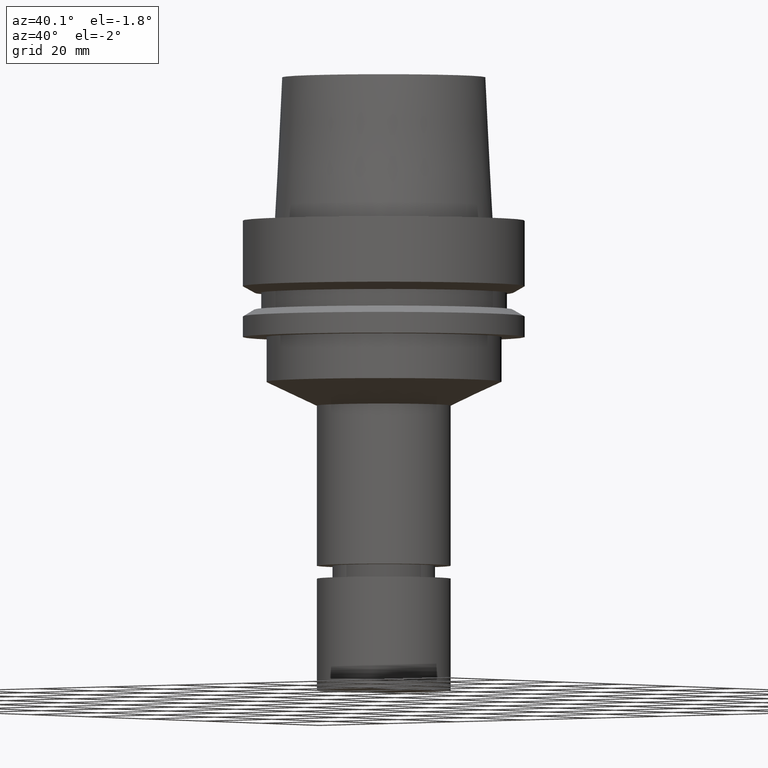
[diagram: clean part render]
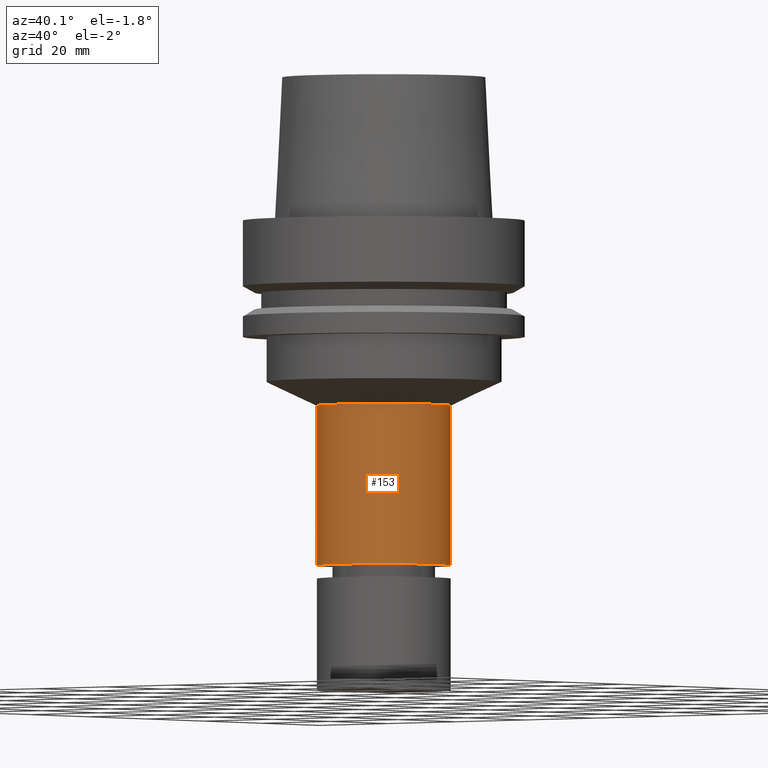
[diagram: same view with one face highlighted and labeled with its STEP entity id]
A machine part, auxiliary view. The second image highlights one B-rep face of the part: STEP entity #153.
In plain terms, the highlighted cylindrical surface (bore or boss wall) has radius 15 mm, axis along (-0, -0, 1).
Its self-contained STEP definition (entity closure, byte-faithful):
#79=EDGE_CURVE('Unnamed[1]',#215,#215,#216,.T.);
#146=EDGE_CURVE('Unnamed[1]',#315,#315,#316,.T.);
#153=ADVANCED_FACE('Unnamed[1]',(#325,#326),#327,.T.);
#215=VERTEX_POINT('',#407);
#216=CIRCLE('',#408,15.0);
#315=VERTEX_POINT('',#532);
#316=CIRCLE('',#533,15.0);
#325=FACE_BOUND('',#545,.T.);
#326=FACE_BOUND('',#546,.T.);
#327=CYLINDRICAL_SURFACE('',#547,15.0);
#407=CARTESIAN_POINT('',(4.72101341071301E-015,15.0,-77.0999999999993));
#408=AXIS2_PLACEMENT_3D('',#630,#631,#632);
#532=CARTESIAN_POINT('',(2.53072078279922E-015,15.0,-41.32980684));
#533=AXIS2_PLACEMENT_3D('',#737,#738,#739);
#545=EDGE_LOOP('',(#747));
#546=EDGE_LOOP('',(#748));
#547=AXIS2_PLACEMENT_3D('',#749,#750,#751);
#630=CARTESIAN_POINT('',(4.72101341071301E-015,9.44202682142601E-015,-77.0999999999993));
#631=DIRECTION('',(-6.12323399573677E-017,-1.22464679914735E-016,1.0));
#632=DIRECTION('',(-1.23259516440783E-032,1.0,1.22464679914735E-016));
#737=CARTESIAN_POINT('',(2.53072078279922E-015,5.06144156559844E-015,-41.32980684));
#738=DIRECTION('',(-6.12323399573677E-017,-1.22464679914735E-016,1.0));
#739=DIRECTION('',(-1.23259516440783E-032,1.0,1.22464679914735E-016));
#747=ORIENTED_EDGE('',*,*,#146,.F.);
#748=ORIENTED_EDGE('',*,*,#79,.T.);
#749=CARTESIAN_POINT('',(3.62586709675611E-015,7.25173419351222E-015,-59.2149034199997));
#750=DIRECTION('',(-6.12323399573677E-017,-1.22464679914735E-016,1.0));
#751=DIRECTION('',(-1.23259516440783E-032,1.0,1.22464679914735E-016));